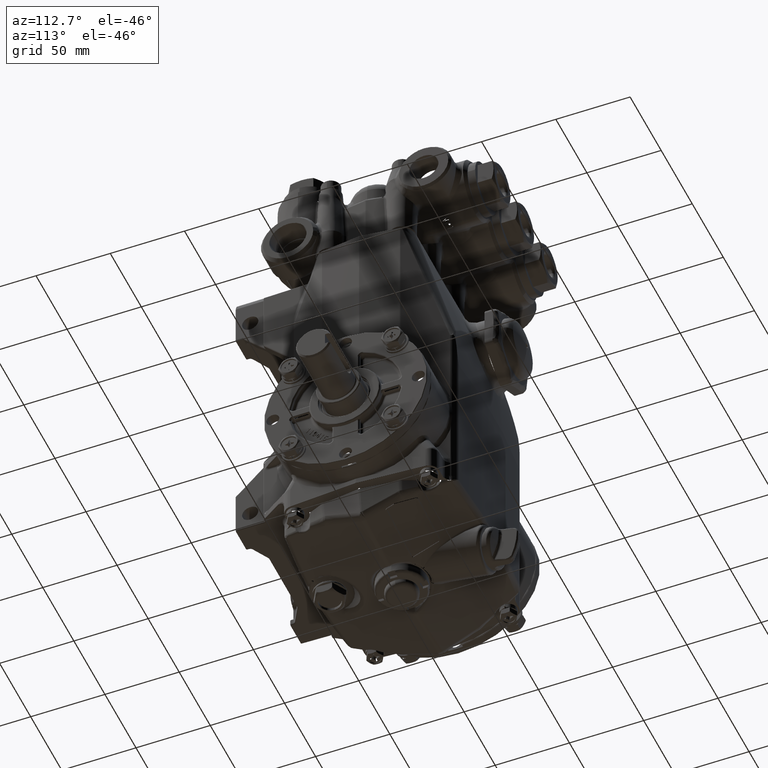
[diagram: clean part render]
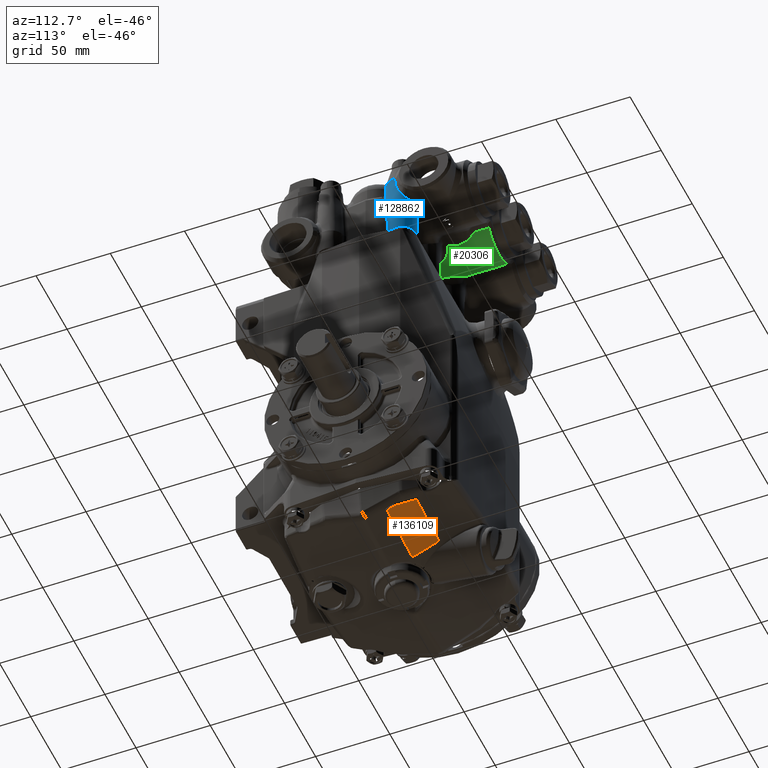
[diagram: same view with three faces highlighted in distinct colors, each labeled with its STEP entity id]
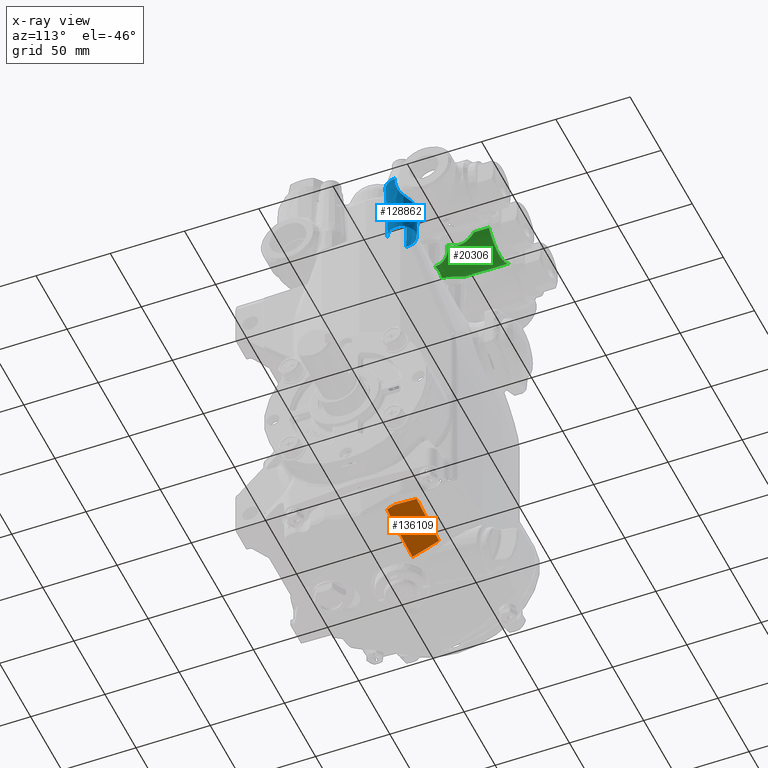
[diagram: x-ray of the same camera — body ghosted, the three highlighted faces saturated]
A machine part, auxiliary view with three faces highlighted in distinct colors.
The next image is the same camera in x-ray (body ghosted, the three faces saturated) — at least one of them is partly hidden behind the body in this view.
Their STEP definitions:

[orange] entity #136109 — the highlighted conical surface has half-angle 22.122 deg.
#51 = CARTESIAN_POINT ( 'NONE',  ( 0.7677165354330708347, 1.299212598425196985, -2.842302195413143995 ) ) ;
#169 = B_SPLINE_CURVE_WITH_KNOTS ( 'NONE', 3,
 ( #26212, #68904, #111636, #102531 ),
 .UNSPECIFIED., .F., .F.,
 ( 4, 4 ),
 ( 2.218473690718443582E-07, 0.0001861085757938792248 ),
 .UNSPECIFIED. ) ;
#358 = EDGE_CURVE ( 'NONE', #76407, #116620, #55934, .T. ) ;
#1653 = ORIENTED_EDGE ( 'NONE', *, *, #60743, .T. ) ;
#2591 = EDGE_CURVE ( 'NONE', #136802, #64716, #26586, .T. ) ;
#2777 = CIRCLE ( 'NONE', #85632, 19.15690416746686608 ) ;
#6854 = B_SPLINE_CURVE_WITH_KNOTS ( 'NONE', 3,
 ( #52962, #90671, #133446, #57054, #122923, #120179, #101193 ),
 .UNSPECIFIED., .F., .F.,
 ( 4, 3, 4 ),
 ( 0.06035633429152259533, 0.06307777925317023526, 0.07870920350615823180 ),
 .UNSPECIFIED. ) ;
#6907 = EDGE_CURVE ( 'NONE', #12508, #76407, #6854, .T. ) ;
#7312 = CARTESIAN_POINT ( 'NONE',  ( 0.000000000000000000, 1.299212598425196985, 16.29921259842519632 ) ) ;
#8488 = CARTESIAN_POINT ( 'NONE',  ( 0.7570998398018038422, 0.5928814125777750466, -3.130073046494867395 ) ) ;
#11309 = EDGE_LOOP ( 'NONE', ( #50587, #68968, #77311, #32948, #49224, #1653, #89679, #68661, #100817, #76723 ) ) ;
#11331 = VERTEX_POINT ( 'NONE', #18843 ) ;
#11808 = VERTEX_POINT ( 'NONE', #50214 ) ;
#12508 = VERTEX_POINT ( 'NONE', #119878 ) ;
#13109 = CARTESIAN_POINT ( 'NONE',  ( 2.362204724409448620, 0.6371871770540744606, -2.982650671379236229 ) ) ;
#13558 = EDGE_CURVE ( 'NONE', #11331, #136802, #52075, .T. ) ;
#17110 = CARTESIAN_POINT ( 'NONE',  ( 2.167463078953089095, 1.299212598425196985, -2.734680803162426344 ) ) ;
#18843 = CARTESIAN_POINT ( 'NONE',  ( 2.362204724409448620, 0.6102362204722598937, -2.993688159327999809 ) ) ;
#20487 = FACE_OUTER_BOUND ( 'NONE', #11309, .T. ) ;
#22391 = CARTESIAN_POINT ( 'NONE',  ( 2.342519685039369914, 0.5905511811023627100, -3.004148964126789334 ) ) ;
#23170 = B_SPLINE_CURVE_WITH_KNOTS ( 'NONE', 3,
 ( #51408, #17110, #103950, #30401, #40903, #136187 ),
 .UNSPECIFIED., .F., .F.,
 ( 4, 2, 4 ),
 ( 1.984561040281247170E-07, 0.0003094218443854333095, 0.0006186452326668385104 ),
 .UNSPECIFIED. ) ;
#26212 = CARTESIAN_POINT ( 'NONE',  ( 2.361017571275371818, 0.7940603347764877418, -2.918548586191764826 ) ) ;
#26517 = CARTESIAN_POINT ( 'NONE',  ( 2.362204724409448620, 0.7873276547897483102, -2.921160157032187676 ) ) ;
#26586 = CIRCLE ( 'NONE', #51195, 19.44497791434607237 ) ;
#29700 = CARTESIAN_POINT ( 'NONE',  ( 0.7480314960629921295, 1.279527559054941532, -2.851089726829155957 ) ) ;
#30401 = CARTESIAN_POINT ( 'NONE',  ( 2.178118652281386236, 1.293189789271259160, -2.735928493229534908 ) ) ;
#31704 = DIRECTION ( 'NONE',  ( 0.000000000000000000, 0.000000000000000000, -1.000000000000000000 ) ) ;
#32948 = ORIENTED_EDGE ( 'NONE', *, *, #13558, .T. ) ;
#33126 = CARTESIAN_POINT ( 'NONE',  ( 2.181871456814156840, 1.286260239041714382, -2.738333758847125488 ) ) ;
#34153 = CARTESIAN_POINT ( 'NONE',  ( 2.362204724409448620, 0.7231685834625665166, -2.947437113610024806 ) ) ;
#35254 = CARTESIAN_POINT ( 'NONE',  ( 0.7480314960629921295, 1.279527559054941532, -2.851089726829155957 ) ) ;
#35616 = CARTESIAN_POINT ( 'NONE',  ( 2.348001423283686329, 0.5905511811023624880, -3.003483739072394076 ) ) ;
#35912 = CARTESIAN_POINT ( 'NONE',  ( 0.7677165354330672820, 0.5905511811023621549, -3.130604112255045646 ) ) ;
#36244 = DIRECTION ( 'NONE',  ( -1.000000000000000000, -2.177613370831132838E-16, 0.000000000000000000 ) ) ;
#36302 = CARTESIAN_POINT ( 'NONE',  ( 2.360236712056326347, 0.6002426481417431070, -2.998022095007448762 ) ) ;
#38633 = CARTESIAN_POINT ( 'NONE',  ( 0.7677165354330672820, 0.5905511811023621549, -3.130604112255045646 ) ) ;
#40903 = CARTESIAN_POINT ( 'NONE',  ( 2.180542416158743446, 1.289911748232079880, -2.736992008522298292 ) ) ;
#41783 = EDGE_CURVE ( 'NONE', #72065, #11331, #93873, .T. ) ;
#45753 = CARTESIAN_POINT ( 'NONE',  ( 0.7499633990554601670, 1.289469332308141869, -2.846970041902299187 ) ) ;
#46440 = CARTESIAN_POINT ( 'NONE',  ( 0.7480314960629468324, 1.284561786859838906, -2.849041732165378704 ) ) ;
#49224 = ORIENTED_EDGE ( 'NONE', *, *, #2591, .T. ) ;
#50214 = CARTESIAN_POINT ( 'NONE',  ( 2.163373570578166927, 1.299212598425196985, -2.735145601304923790 ) ) ;
#50587 = ORIENTED_EDGE ( 'NONE', *, *, #91049, .T. ) ;
#51195 = AXIS2_PLACEMENT_3D ( 'NONE', #79656, #132238, #36244 ) ;
#51408 = CARTESIAN_POINT ( 'NONE',  ( 2.163373570578166927, 1.299212598425196985, -2.735145601304923790 ) ) ;
#52075 = B_SPLINE_CURVE_WITH_KNOTS ( 'NONE', 3,
 ( #66470, #78332, #36302, #109195, #35616, #22391 ),
 .UNSPECIFIED., .F., .F.,
 ( 4, 2, 4 ),
 ( 2.130397895611796128E-07, 0.0004140804918880232528, 0.0008279479439864853270 ),
 .UNSPECIFIED. ) ;
#52699 = CARTESIAN_POINT ( 'NONE',  ( 0.000000000000000000, 2.421259842519685179, 16.29921259842519632 ) ) ;
#52754 = CARTESIAN_POINT ( 'NONE',  ( 2.241564233204892620, 1.122255683803611515, -2.798597379665573204 ) ) ;
#52962 = CARTESIAN_POINT ( 'NONE',  ( 0.7480314960629922405, 0.6102362204722661110, -3.123363947683041708 ) ) ;
#54894 = CARTESIAN_POINT ( 'NONE',  ( 0.7571049466979473674, 1.296888633076421993, -2.843670637348393981 ) ) ;
#55822 = CARTESIAN_POINT ( 'NONE',  ( 2.362204724409448620, 0.7552481542798099579, -2.934298721152639455 ) ) ;
#55934 = B_SPLINE_CURVE_WITH_KNOTS ( 'NONE', 3,
 ( #35254, #46440, #45753, #54894, #131918, #129201 ),
 .UNSPECIFIED., .F., .F.,
 ( 4, 2, 4 ),
 ( 2.128983218082860915E-07, 0.0004085744633657869651, 0.0008169360284097656284 ),
 .UNSPECIFIED. ) ;
#57054 = CARTESIAN_POINT ( 'NONE',  ( 0.7480314960629922405, 0.7094818394611273060, -3.082990228194323556 ) ) ;
#60550 = DIRECTION ( 'NONE',  ( 0.000000000000000000, 0.000000000000000000, -1.000000000000000000 ) ) ;
#60743 = EDGE_CURVE ( 'NONE', #64716, #12508, #108733, .T. ) ;
#64716 = VERTEX_POINT ( 'NONE', #35912 ) ;
#66470 = CARTESIAN_POINT ( 'NONE',  ( 2.362204724409448620, 0.6102362204722598937, -2.993688159327999809 ) ) ;
#68661 = ORIENTED_EDGE ( 'NONE', *, *, #358, .T. ) ;
#68736 = EDGE_CURVE ( 'NONE', #118977, #72065, #169, .T. ) ;
#68904 = CARTESIAN_POINT ( 'NONE',  ( 2.361818043338570039, 0.7918610558578859093, -2.919350980894141134 ) ) ;
#68968 = ORIENTED_EDGE ( 'NONE', *, *, #68736, .T. ) ;
#72065 = VERTEX_POINT ( 'NONE', #26517 ) ;
#73129 = DIRECTION ( 'NONE',  ( 0.000000000000000000, -1.000000000000000000, 0.000000000000000000 ) ) ;
#74344 = AXIS2_PLACEMENT_3D ( 'NONE', #52699, #129742, #31704 ) ;
#76407 = VERTEX_POINT ( 'NONE', #29700 ) ;
#76477 = EDGE_CURVE ( 'NONE', #11808, #86241, #23170, .T. ) ;
#76723 = ORIENTED_EDGE ( 'NONE', *, *, #76477, .T. ) ;
#76847 = CARTESIAN_POINT ( 'NONE',  ( 2.362204724409448620, 0.6910889427706020660, -2.960575335452757084 ) ) ;
#77311 = ORIENTED_EDGE ( 'NONE', *, *, #41783, .T. ) ;
#78332 = CARTESIAN_POINT ( 'NONE',  ( 2.362204724409401990, 0.6051375368811405808, -2.995776272917617611 ) ) ;
#78812 = CONICAL_SURFACE ( 'NONE', #74344, 18.70078740157480368, 0.3861007243444653514 ) ;
#79656 = CARTESIAN_POINT ( 'NONE',  ( -1.714007097452575998E-15, 0.5905511811023621549, 16.29921259842519632 ) ) ;
#80716 = B_SPLINE_CURVE_WITH_KNOTS ( 'NONE', 3,
 ( #33126, #52754, #119283, #117924 ),
 .UNSPECIFIED., .F., .F.,
 ( 4, 4 ),
 ( 2.251659847165332422E-07, 0.01406988702351640204 ),
 .UNSPECIFIED. ) ;
#81342 = CARTESIAN_POINT ( 'NONE',  ( 0.7623334037972309130, 0.5905511811023631541, -3.130816812108617953 ) ) ;
#85632 = AXIS2_PLACEMENT_3D ( 'NONE', #7312, #73129, #60550 ) ;
#86241 = VERTEX_POINT ( 'NONE', #115751 ) ;
#88049 = CARTESIAN_POINT ( 'NONE',  ( 2.362204724409448620, 0.6102362204722598937, -2.993688159327999809 ) ) ;
#89097 = CARTESIAN_POINT ( 'NONE',  ( 2.361017571275371818, 0.7940603347764877418, -2.918548586191764826 ) ) ;
#89679 = ORIENTED_EDGE ( 'NONE', *, *, #6907, .T. ) ;
#90671 = CARTESIAN_POINT ( 'NONE',  ( 0.7480314960629922405, 0.6433181007146216990, -3.109906058998912481 ) ) ;
#91049 = EDGE_CURVE ( 'NONE', #86241, #118977, #80716, .T. ) ;
#93873 = B_SPLINE_CURVE_WITH_KNOTS ( 'NONE', 3,
 ( #131485, #55822, #34153, #76847, #109088, #13109, #88049 ),
 .UNSPECIFIED., .F., .F.,
 ( 4, 3, 4 ),
 ( 0.04871938871757212908, 0.05136092104862834823, 0.05358013428598052547 ),
 .UNSPECIFIED. ) ;
#100817 = ORIENTED_EDGE ( 'NONE', *, *, #118793, .T. ) ;
#101193 = CARTESIAN_POINT ( 'NONE',  ( 0.7480314960629921295, 1.279527559054941532, -2.851089726829155957 ) ) ;
#102531 = CARTESIAN_POINT ( 'NONE',  ( 2.362204724409448620, 0.7873276547897483102, -2.921160157032187676 ) ) ;
#103075 = CARTESIAN_POINT ( 'NONE',  ( 0.7480314960630365384, 0.6052554894337803804, -3.125390136139997832 ) ) ;
#103950 = CARTESIAN_POINT ( 'NONE',  ( 2.171489969117927465, 1.297917720654659934, -2.734751430057754895 ) ) ;
#105142 = CARTESIAN_POINT ( 'NONE',  ( 0.7480314960629922405, 0.6102362204722661110, -3.123363947683041708 ) ) ;
#108733 = B_SPLINE_CURVE_WITH_KNOTS ( 'NONE', 3,
 ( #38633, #81342, #8488, #115685, #103075, #105142 ),
 .UNSPECIFIED., .F., .F.,
 ( 4, 2, 4 ),
 ( 1.972626934571511815E-07, 0.0004047914403740930341, 0.0008093856180547288458 ),
 .UNSPECIFIED. ) ;
#108872 = CARTESIAN_POINT ( 'NONE',  ( 2.342519685039369914, 0.5905511811023627100, -3.004148964126789334 ) ) ;
#109088 = CARTESIAN_POINT ( 'NONE',  ( 2.362204724409448620, 0.6641380845717120840, -2.971613063626493467 ) ) ;
#109195 = CARTESIAN_POINT ( 'NONE',  ( 2.353114353284962768, 0.5928719600789127409, -3.001910296782097642 ) ) ;
#111636 = CARTESIAN_POINT ( 'NONE',  ( 2.362204724409469492, 0.7896158197265470413, -2.920223010216853154 ) ) ;
#115685 = CARTESIAN_POINT ( 'NONE',  ( 0.7499720450541932371, 0.6002845048222804625, -3.127337857010716426 ) ) ;
#115751 = CARTESIAN_POINT ( 'NONE',  ( 2.181871456814156840, 1.286260239041714382, -2.738333758847125488 ) ) ;
#116620 = VERTEX_POINT ( 'NONE', #51 ) ;
#117924 = CARTESIAN_POINT ( 'NONE',  ( 2.361017571275371818, 0.7940603347764877418, -2.918548586191764826 ) ) ;
#118793 = EDGE_CURVE ( 'NONE', #116620, #11808, #2777, .T. ) ;
#118977 = VERTEX_POINT ( 'NONE', #89097 ) ;
#119283 = CARTESIAN_POINT ( 'NONE',  ( 2.301279799705799434, 0.9581885132524283755, -2.858667331565183822 ) ) ;
#119878 = CARTESIAN_POINT ( 'NONE',  ( 0.7480314960629922405, 0.6102362204722661110, -3.123363947683041708 ) ) ;
#120179 = CARTESIAN_POINT ( 'NONE',  ( 0.7480314960629922405, 1.089512565094623353, -2.928390498417218435 ) ) ;
#122923 = CARTESIAN_POINT ( 'NONE',  ( 0.7480314960629922405, 0.8994973222866062823, -3.005690658309041474 ) ) ;
#129201 = CARTESIAN_POINT ( 'NONE',  ( 0.7677165354330708347, 1.299212598425196985, -2.842302195413143995 ) ) ;
#129742 = DIRECTION ( 'NONE',  ( 0.000000000000000000, -1.000000000000000000, 0.000000000000000000 ) ) ;
#131485 = CARTESIAN_POINT ( 'NONE',  ( 2.362204724409448620, 0.7873276547897483102, -2.921160157032187676 ) ) ;
#131918 = CARTESIAN_POINT ( 'NONE',  ( 0.7622728643543603688, 1.299212598425196985, -2.842520526947804438 ) ) ;
#132238 = DIRECTION ( 'NONE',  ( -2.168404344971009608E-16, 1.000000000000000000, 0.000000000000000000 ) ) ;
#133446 = CARTESIAN_POINT ( 'NONE',  ( 0.7480314960629922405, 0.6763999737260083522, -3.096448152539762244 ) ) ;
#136109 = ADVANCED_FACE ( 'NONE', ( #20487 ), #78812, .T. ) ;
#136187 = CARTESIAN_POINT ( 'NONE',  ( 2.181871456814156840, 1.286260239041714382, -2.738333758847125488 ) ) ;
#136802 = VERTEX_POINT ( 'NONE', #108872 ) ;

[blue] entity #128862 — the highlighted conical surface has half-angle 2 deg.
#384 = VERTEX_POINT ( 'NONE', #24069 ) ;
#409 = CARTESIAN_POINT ( 'NONE',  ( 1.861803409688485011, 0.9407094575471620646, 7.336223821275323687 ) ) ;
#3229 = B_SPLINE_CURVE_WITH_KNOTS ( 'NONE', 3,
 ( #90899, #90195, #27175, #111207 ),
 .UNSPECIFIED., .F., .F.,
 ( 4, 4 ),
 ( 0.000000000000000000, 0.01762479685504074120 ),
 .UNSPECIFIED. ) ;
#4053 = AXIS2_PLACEMENT_3D ( 'NONE', #133039, #104798, #68550 ) ;
#4342 = CARTESIAN_POINT ( 'NONE',  ( 2.534647657248350949, 1.204540927760685554, 7.538040808081320598 ) ) ;
#4360 = CARTESIAN_POINT ( 'NONE',  ( 2.649008875044799982, 0.9442391490563317724, 7.982163679493296193 ) ) ;
#5048 = CARTESIAN_POINT ( 'NONE',  ( 2.336161191729448916, 1.320519103213885881, 7.460911059873077456 ) ) ;
#5750 = CARTESIAN_POINT ( 'NONE',  ( 2.218000379204186689, 1.332211635285447837, 7.455147650343310062 ) ) ;
#11229 = CIRCLE ( 'NONE', #44728, 0.3556575611107096191 ) ;
#11622 = CARTESIAN_POINT ( 'NONE',  ( 1.866230547579284638, 0.9029842566450290153, 7.275649669491573768 ) ) ;
#12494 = DIRECTION ( 'NONE',  ( 0.000000000000000000, -1.128368283479083073E-16, 1.000000000000000000 ) ) ;
#14159 = CARTESIAN_POINT ( 'NONE',  ( 2.639066968661640367, 1.001629162794327677, 7.815402074447262315 ) ) ;
#14853 = CARTESIAN_POINT ( 'NONE',  ( 2.309288296444247823, 1.326008624877284880, 7.458182443232479031 ) ) ;
#14871 = CARTESIAN_POINT ( 'NONE',  ( 2.644453250993850091, 0.9745738423280910778, 7.880846973744087158 ) ) ;
#15548 = CARTESIAN_POINT ( 'NONE',  ( 2.610202473574045001, 1.091410278387100696, 7.659093474000644441 ) ) ;
#15669 = VERTEX_POINT ( 'NONE', #83883 ) ;
#15847 = CARTESIAN_POINT ( 'NONE',  ( 2.026008566358926455, 1.263284333314909080, 7.431320302112107257 ) ) ;
#16554 = CARTESIAN_POINT ( 'NONE',  ( 1.863656350348960711, 0.9993433660858559442, 7.341738156746068888 ) ) ;
#17963 = CARTESIAN_POINT ( 'NONE',  ( 1.870582511628840372, 1.035513753148030291, 7.344192755015568785 ) ) ;
#18310 = CARTESIAN_POINT ( 'NONE',  ( 2.305426451589334125, 0.5945524861438769015, 6.573429153673131964 ) ) ;
#18561 = VERTEX_POINT ( 'NONE', #18310 ) ;
#20522 = CARTESIAN_POINT ( 'NONE',  ( 2.305608730188834610, 0.5931735530180033411, 6.613225197322275761 ) ) ;
#20763 = CARTESIAN_POINT ( 'NONE',  ( 1.862854832095889979, 0.9232577342142475052, 7.323174742913058921 ) ) ;
#23130 = B_SPLINE_CURVE_WITH_KNOTS ( 'NONE', 3,
 ( #136142, #20522, #40159, #116520, #40860, #125641, #52051, #29656, #72368, #82872, #28291, #115130, #82185 ),
 .UNSPECIFIED., .F., .F.,
 ( 4, 3, 3, 3, 4 ),
 ( 0.0009656898102938655777, 0.004000000000033364887, 0.02000000000358590282, 0.04302625218245829941, 0.04318078307463346643 ),
 .UNSPECIFIED. ) ;
#24069 = CARTESIAN_POINT ( 'NONE',  ( 1.888436927078268601, 0.9448818897637792924, 6.573429153673131076 ) ) ;
#24473 = EDGE_CURVE ( 'NONE', #63118, #67115, #36947, .T. ) ;
#25388 = CARTESIAN_POINT ( 'NONE',  ( 2.472935514523421752, 1.258554010908518928, 7.497155846801384804 ) ) ;
#25405 = CARTESIAN_POINT ( 'NONE',  ( 2.654145857028515021, 0.9172049402774354876, 8.157341495081020355 ) ) ;
#26792 = CARTESIAN_POINT ( 'NONE',  ( 2.327285032091596317, 1.322550234904485755, 7.459894493029770146 ) ) ;
#26909 = VERTEX_POINT ( 'NONE', #129209 ) ;
#27175 = CARTESIAN_POINT ( 'NONE',  ( 1.883179581476829290, 0.8996346210129034793, 6.804566210043434538 ) ) ;
#27792 = CARTESIAN_POINT ( 'NONE',  ( 2.051984792393543700, 1.280430133310112906, 7.451989122169594637 ) ) ;
#28190 = CARTESIAN_POINT ( 'NONE',  ( 2.077876592537356792, 1.294521091702536042, 7.474915758125018961 ) ) ;
#28291 = CARTESIAN_POINT ( 'NONE',  ( 2.312952740863898793, 0.5371359266601197779, 8.230373183999324382 ) ) ;
#29268 = AXIS2_PLACEMENT_3D ( 'NONE', #85599, #52695, #137478 ) ;
#29656 = CARTESIAN_POINT ( 'NONE',  ( 2.310215462188078828, 0.5581366483711339699, 7.624351587699218058 ) ) ;
#33435 = ORIENTED_EDGE ( 'NONE', *, *, #74482, .F. ) ;
#34290 = CARTESIAN_POINT ( 'NONE',  ( 2.244094488188976388, 0.9448818897637796255, 6.573429153673131076 ) ) ;
#35899 = CARTESIAN_POINT ( 'NONE',  ( 2.517579797152795340, 1.221443338997366235, 7.524379592182013354 ) ) ;
#36889 = CARTESIAN_POINT ( 'NONE',  ( 2.013115272328601879, 1.253685165485132424, 7.421817606034693426 ) ) ;
#36947 = B_SPLINE_CURVE_WITH_KNOTS ( 'NONE', 3,
 ( #48797, #134281, #27792, #15847, #36889, #113945, #49493, #81700, #100627, #123757, #79601, #91508, #133581, #48099, #92202, #17963, #16554, #122377 ),
 .UNSPECIFIED., .F., .F.,
 ( 4, 2, 2, 2, 2, 2, 2, 2, 4 ),
 ( 0.000000000000000000, 0.001421296052617897513, 0.002842592105235795027, 0.004263888157853704466, 0.005685184210471613472, 0.007106480263089522478, 0.007817128289398473512, 0.008527776315707424545, 0.01137036842094322521 ),
 .UNSPECIFIED. ) ;
#37292 = CARTESIAN_POINT ( 'NONE',  ( 2.544877231787860516, 1.193084266682740591, 7.547941697212940504 ) ) ;
#37704 = ORIENTED_EDGE ( 'NONE', *, *, #42414, .F. ) ;
#38701 = CARTESIAN_POINT ( 'NONE',  ( 2.655244233785588825, 0.9153805615966481568, 8.192787087514732391 ) ) ;
#40159 = CARTESIAN_POINT ( 'NONE',  ( 2.305790885210711849, 0.5917946127707168769, 6.653021241290870691 ) ) ;
#40860 = CARTESIAN_POINT ( 'NONE',  ( 2.306932795237793155, 0.5831444402953692707, 6.902662907394263136 ) ) ;
#42414 = EDGE_CURVE ( 'NONE', #133295, #63118, #107002, .T. ) ;
#43227 = ORIENTED_EDGE ( 'NONE', *, *, #123433, .F. ) ;
#43860 = CARTESIAN_POINT ( 'NONE',  ( 1.864067480272381117, 0.9127463600762834028, 7.309125965395670832 ) ) ;
#44671 = ORIENTED_EDGE ( 'NONE', *, *, #51596, .F. ) ;
#44728 = AXIS2_PLACEMENT_3D ( 'NONE', #34290, #88192, #131627 ) ;
#46402 = CARTESIAN_POINT ( 'NONE',  ( 2.563379027129064625, 1.170081946970243925, 7.569342201623926236 ) ) ;
#46922 = CARTESIAN_POINT ( 'NONE',  ( 1.866546591729894455, 0.9029229933981913758, 7.266848504365934325 ) ) ;
#47110 = CARTESIAN_POINT ( 'NONE',  ( 2.647813203872985799, 0.9531541184479653817, 7.948028086628778688 ) ) ;
#47785 = CARTESIAN_POINT ( 'NONE',  ( 2.300133379202217832, 1.327438007304584389, 7.457485952374944382 ) ) ;
#47795 = AXIS2_PLACEMENT_3D ( 'NONE', #88322, #118542, #65950 ) ;
#48099 = CARTESIAN_POINT ( 'NONE',  ( 1.888842624237887957, 1.087860126153815221, 7.351681671493007109 ) ) ;
#48398 = CONICAL_SURFACE ( 'NONE', #95414, 0.4134485467773693634, 0.03490658503988738198 ) ;
#48797 = CARTESIAN_POINT ( 'NONE',  ( 2.077876592537356792, 1.294521091702536042, 7.474915758125018961 ) ) ;
#49493 = CARTESIAN_POINT ( 'NONE',  ( 1.976057886092387417, 1.220974283844106667, 7.396939499272170870 ) ) ;
#51596 = EDGE_CURVE ( 'NONE', #384, #95505, #11229, .T. ) ;
#52051 = CARTESIAN_POINT ( 'NONE',  ( 2.308843003612528921, 0.5686014579004056158, 7.322354176192448882 ) ) ;
#52059 = CARTESIAN_POINT ( 'NONE',  ( 2.655036530563264829, 0.8975326094750906147, 8.234426638614014138 ) ) ;
#52294 = CARTESIAN_POINT ( 'NONE',  ( 1.861719234766352038, 0.9530776950432765515, 7.340381646815708372 ) ) ;
#52695 = DIRECTION ( 'NONE',  ( -0.000000000000000000, -5.641841417395415363E-17, 1.000000000000000000 ) ) ;
#53255 = EDGE_CURVE ( 'NONE', #98977, #26909, #73721, .T. ) ;
#53809 = CARTESIAN_POINT ( 'NONE',  ( 2.077876592537356792, 1.294521091702536042, 7.474915758125018961 ) ) ;
#53901 = CARTESIAN_POINT ( 'NONE',  ( 2.639066968661640367, 1.001629162794327677, 7.815402074447262315 ) ) ;
#56897 = CARTESIAN_POINT ( 'NONE',  ( 2.635769640383939016, 1.016473987165907200, 7.782393724949594471 ) ) ;
#58284 = CARTESIAN_POINT ( 'NONE',  ( 2.458805258727502441, 1.268163904146925480, 7.490859920347265444 ) ) ;
#58975 = CARTESIAN_POINT ( 'NONE',  ( 2.586506379068579609, 1.135583108362629767, 7.605449876322400549 ) ) ;
#58993 = CARTESIAN_POINT ( 'NONE',  ( 2.651152492064718924, 0.9298827658441888300, 8.051455679130352650 ) ) ;
#63118 = VERTEX_POINT ( 'NONE', #53809 ) ;
#63482 = CARTESIAN_POINT ( 'NONE',  ( 1.864700337997121427, 0.9090820617889705524, 7.301182108640968060 ) ) ;
#64192 = CARTESIAN_POINT ( 'NONE',  ( 1.861813023249320409, 0.9575007568583179252, 7.341064909404920513 ) ) ;
#65053 = DIRECTION ( 'NONE',  ( 0.000000000000000000, -1.000000000000000000, 0.000000000000000000 ) ) ;
#65950 = DIRECTION ( 'NONE',  ( 1.000000000000000000, 0.000000000000000000, 0.000000000000000000 ) ) ;
#67115 = VERTEX_POINT ( 'NONE', #85514 ) ;
#67427 = CARTESIAN_POINT ( 'NONE',  ( 2.639066968661640367, 1.001629162794327677, 7.815402074447262315 ) ) ;
#68550 = DIRECTION ( 'NONE',  ( 1.000000000000000000, 0.000000000000000000, 0.000000000000000000 ) ) ;
#69493 = CARTESIAN_POINT ( 'NONE',  ( 2.254504772025544224, 1.332924009501758045, 7.454829143413945758 ) ) ;
#72368 = CARTESIAN_POINT ( 'NONE',  ( 2.311581970078045334, 0.5476715226437464112, 7.926349015331404679 ) ) ;
#73721 = B_SPLINE_CURVE_WITH_KNOTS ( 'NONE', 3,
 ( #52059, #127722, #94776, #96162, #137528, #138233 ),
 .UNSPECIFIED., .F., .F.,
 ( 4, 2, 4 ),
 ( -0.0004687444731202445301, -0.0002221801797227523499, 2.438411367473983021E-05 ),
 .UNSPECIFIED. ) ;
#74482 = EDGE_CURVE ( 'NONE', #15669, #384, #138442, .T. ) ;
#74871 = FACE_OUTER_BOUND ( 'NONE', #132922, .T. ) ;
#75327 = CARTESIAN_POINT ( 'NONE',  ( 2.599752049299684842, 0.9448818897637792924, 6.573429153673131076 ) ) ;
#79321 = CARTESIAN_POINT ( 'NONE',  ( 2.642302881031982853, 0.9870608375400825585, 7.847795611719987185 ) ) ;
#79601 = CARTESIAN_POINT ( 'NONE',  ( 1.912156179959592972, 1.137194152324017216, 7.362054623401424358 ) ) ;
#80697 = CARTESIAN_POINT ( 'NONE',  ( 2.593052410635973803, 1.124226105196171277, 7.618517887124804489 ) ) ;
#81391 = CARTESIAN_POINT ( 'NONE',  ( 2.379462896697514207, 1.307749333371303946, 7.467508591682010533 ) ) ;
#81700 = CARTESIAN_POINT ( 'NONE',  ( 1.952832364386910324, 1.195612527988654694, 7.383106672771591938 ) ) ;
#82185 = CARTESIAN_POINT ( 'NONE',  ( 2.312971016240062294, 0.5369954589791351429, 8.234426638614012361 ) ) ;
#82872 = CARTESIAN_POINT ( 'NONE',  ( 2.312943602845054070, 0.5372061604844992067, 8.228346456692914757 ) ) ;
#83883 = CARTESIAN_POINT ( 'NONE',  ( 1.891555615055753536, 0.8978858338182896803, 6.573428572717614493 ) ) ;
#84507 = CARTESIAN_POINT ( 'NONE',  ( 1.865787756546772425, 0.9041672348605876985, 7.284340661250883642 ) ) ;
#85514 = CARTESIAN_POINT ( 'NONE',  ( 1.862008111162504420, 0.9619291555500151247, 7.341136162314337632 ) ) ;
#85599 = CARTESIAN_POINT ( 'NONE',  ( 2.244094488188976388, 0.9448818897637792924, 8.234426638614012361 ) ) ;
#85886 = CARTESIAN_POINT ( 'NONE',  ( 1.862117103649604033, 0.9331095139110696657, 7.331782228788998879 ) ) ;
#88192 = DIRECTION ( 'NONE',  ( 0.000000000000000000, 0.000000000000000000, -1.000000000000000000 ) ) ;
#88322 = CARTESIAN_POINT ( 'NONE',  ( 2.244094488188976388, 0.9448818897637796255, 6.573429153673131076 ) ) ;
#89596 = CIRCLE ( 'NONE', #29268, 0.4136608714087039451 ) ;
#90195 = CARTESIAN_POINT ( 'NONE',  ( 1.874846750533550210, 0.9013140578219637211, 7.035706532401436064 ) ) ;
#90899 = CARTESIAN_POINT ( 'NONE',  ( 1.866546591729894455, 0.9029229933981913758, 7.266848504365934325 ) ) ;
#91206 = CARTESIAN_POINT ( 'NONE',  ( 2.412557938666268775, 1.293916715104912685, 7.475198513370012066 ) ) ;
#91508 = CARTESIAN_POINT ( 'NONE',  ( 1.899851266153422813, 1.113014229697389723, 7.356455179847422698 ) ) ;
#92202 = CARTESIAN_POINT ( 'NONE',  ( 1.885521176456942616, 1.079179163687757237, 7.350295891492295119 ) ) ;
#93292 = CARTESIAN_POINT ( 'NONE',  ( 2.312971016240062294, 0.5369954589791351429, 8.234426638614012361 ) ) ;
#93481 = EDGE_CURVE ( 'NONE', #18561, #111985, #23130, .T. ) ;
#93994 = ORIENTED_EDGE ( 'NONE', *, *, #112884, .F. ) ;
#94776 = CARTESIAN_POINT ( 'NONE',  ( 2.655511050155763275, 0.9029247820448312867, 8.230951524199481284 ) ) ;
#95414 = AXIS2_PLACEMENT_3D ( 'NONE', #117643, #12494, #65053 ) ;
#95505 = VERTEX_POINT ( 'NONE', #75327 ) ;
#96162 = CARTESIAN_POINT ( 'NONE',  ( 2.656002892821273775, 0.9089229694577393159, 8.228790532010499703 ) ) ;
#97888 = EDGE_CURVE ( 'NONE', #67115, #108203, #131616, .T. ) ;
#98977 = VERTEX_POINT ( 'NONE', #121378 ) ;
#100627 = CARTESIAN_POINT ( 'NONE',  ( 1.941660267487064662, 1.181711468923723807, 7.376961513693148120 ) ) ;
#101023 = CARTESIAN_POINT ( 'NONE',  ( 2.428691995616374388, 1.285820233990988548, 7.479893941269834201 ) ) ;
#101724 = CARTESIAN_POINT ( 'NONE',  ( 2.511586988534215248, 1.227040360667902341, 7.520017642195025331 ) ) ;
#104798 = DIRECTION ( 'NONE',  ( 0.000000000000000000, 0.000000000000000000, -1.000000000000000000 ) ) ;
#106901 = CARTESIAN_POINT ( 'NONE',  ( 1.866546591729894455, 0.9029229933981913758, 7.266848504365934325 ) ) ;
#107002 = B_SPLINE_CURVE_WITH_KNOTS ( 'NONE', 3,
 ( #14159, #56897, #131882, #133283, #15548, #80697, #58975, #123458, #46402, #37292, #4342, #35899, #101724, #121373, #122763, #25388, #58284, #101023, #91206, #81391, #110818, #5048, #26792, #14853, #47785, #69493, #5750, #133983, #124161, #28190 ),
 .UNSPECIFIED., .F., .F.,
 ( 4, 2, 2, 2, 2, 2, 2, 2, 2, 2, 2, 2, 2, 2, 4 ),
 ( 0.01078552524828387330, 0.01356050557378577284, 0.01633548589928767239, 0.01772297606203864645, 0.01911046622478962398, 0.02049795638754060151, 0.02119170146891609374, 0.02188544655029159292, 0.02327293671304257044, 0.02466042687579354797, 0.02604791703854452203, 0.02674166211992001427, 0.02743540720129550303, 0.03021038752679747197, 0.03298536785229944091 ),
 .UNSPECIFIED. ) ;
#107579 = CARTESIAN_POINT ( 'NONE',  ( 1.863146608013426908, 0.9204102419894402143, 7.319886757602402483 ) ) ;
#108203 = VERTEX_POINT ( 'NONE', #46922 ) ;
#109256 = ORIENTED_EDGE ( 'NONE', *, *, #135636, .F. ) ;
#110153 = CARTESIAN_POINT ( 'NONE',  ( 2.656489487345783385, 0.9153756024403392200, 8.228365693797808689 ) ) ;
#110454 = CIRCLE ( 'NONE', #47795, 0.3556575611107096191 ) ;
#110818 = CARTESIAN_POINT ( 'NONE',  ( 2.362429366662599950, 1.313553394960827125, 7.464467493209214766 ) ) ;
#111207 = CARTESIAN_POINT ( 'NONE',  ( 1.891555615055753536, 0.8978858338182896803, 6.573428572717614493 ) ) ;
#111985 = VERTEX_POINT ( 'NONE', #93292 ) ;
#112884 = EDGE_CURVE ( 'NONE', #26909, #133295, #127688, .T. ) ;
#113945 = CARTESIAN_POINT ( 'NONE',  ( 1.988170942553718401, 1.232549151371867602, 7.404652010812728058 ) ) ;
#114083 = ORIENTED_EDGE ( 'NONE', *, *, #132983, .F. ) ;
#115130 = CARTESIAN_POINT ( 'NONE',  ( 2.312961878662139981, 0.5370656928249917250, 8.232399911306357509 ) ) ;
#116068 = CARTESIAN_POINT ( 'NONE',  ( 1.862008111162504420, 0.9619291555500151247, 7.341136162314337632 ) ) ;
#116520 = CARTESIAN_POINT ( 'NONE',  ( 2.305972920135858306, 0.5904156656893263522, 6.692817285571814878 ) ) ;
#117643 = CARTESIAN_POINT ( 'NONE',  ( 2.244094488188976388, 0.9448818897637792924, 8.228346456692914757 ) ) ;
#118542 = DIRECTION ( 'NONE',  ( 0.000000000000000000, 0.000000000000000000, -1.000000000000000000 ) ) ;
#121373 = CARTESIAN_POINT ( 'NONE',  ( 2.499213649778766921, 1.237896806105314385, 7.511833184456907730 ) ) ;
#121378 = CARTESIAN_POINT ( 'NONE',  ( 2.655036530563264829, 0.8975326094750906147, 8.234426638614014138 ) ) ;
#122377 = CARTESIAN_POINT ( 'NONE',  ( 1.862008111162504420, 0.9619291555500151247, 7.341136162314337632 ) ) ;
#122763 = CARTESIAN_POINT ( 'NONE',  ( 2.492809647967019426, 1.243181166100305823, 7.507989754975062269 ) ) ;
#123433 = EDGE_CURVE ( 'NONE', #95505, #18561, #110454, .T. ) ;
#123458 = CARTESIAN_POINT ( 'NONE',  ( 2.571649982619423014, 1.158535352099323568, 7.580841914088793487 ) ) ;
#123480 = CARTESIAN_POINT ( 'NONE',  ( 2.652101041253749347, 0.9244425820413902928, 8.086717202996293707 ) ) ;
#123638 = ORIENTED_EDGE ( 'NONE', *, *, #53255, .F. ) ;
#123757 = CARTESIAN_POINT ( 'NONE',  ( 1.921371424468686140, 1.152543726090148990, 7.366467721272472957 ) ) ;
#124161 = CARTESIAN_POINT ( 'NONE',  ( 2.110531683139104331, 1.309708870421858018, 7.466215691843692603 ) ) ;
#125641 = CARTESIAN_POINT ( 'NONE',  ( 2.307889338333239060, 0.5758730256403969960, 7.112508537919625340 ) ) ;
#126571 = CARTESIAN_POINT ( 'NONE',  ( 1.861716178614346795, 0.9446985241282167545, 7.337955324320263983 ) ) ;
#127688 = B_SPLINE_CURVE_WITH_KNOTS ( 'NONE', 3,
 ( #110153, #38701, #25405, #123480, #58993, #4360, #47110, #14871, #79321, #67427 ),
 .UNSPECIFIED., .F., .F.,
 ( 4, 2, 2, 2, 4 ),
 ( -4.875315972245409648E-07, 0.002704549721142683865, 0.005409586973882592707, 0.008114624226622499381, 0.01081966147936240866 ),
 .UNSPECIFIED. ) ;
#127722 = CARTESIAN_POINT ( 'NONE',  ( 2.655266954068232987, 0.9001038702561664495, 8.232553604692817828 ) ) ;
#128862 = ADVANCED_FACE ( 'NONE', ( #74871 ), #48398, .T. ) ;
#129209 = CARTESIAN_POINT ( 'NONE',  ( 2.656489487345783385, 0.9153756024403392200, 8.228365693797808689 ) ) ;
#129341 = CARTESIAN_POINT ( 'NONE',  ( 1.862341204549668561, 0.9295849324130752711, 7.329108544633512246 ) ) ;
#130116 = ORIENTED_EDGE ( 'NONE', *, *, #24473, .F. ) ;
#130255 = ORIENTED_EDGE ( 'NONE', *, *, #97888, .F. ) ;
#131120 = ORIENTED_EDGE ( 'NONE', *, *, #93481, .F. ) ;
#131616 = B_SPLINE_CURVE_WITH_KNOTS ( 'NONE', 3,
 ( #116068, #64192, #52294, #126571, #409, #85886, #129341, #20763, #107579, #43860, #63482, #84507, #11622, #106901 ),
 .UNSPECIFIED., .F., .F.,
 ( 4, 2, 2, 2, 2, 2, 4 ),
 ( 0.000000000000000000, 0.0003367806806370080832, 0.0006735613612740161665, 0.001010342041911024358, 0.001347122722548032333, 0.002020684083822122442, 0.002694245445096212551 ),
 .UNSPECIFIED. ) ;
#131627 = DIRECTION ( 'NONE',  ( 1.000000000000000000, 7.681118841204360921E-16, 0.000000000000000000 ) ) ;
#131882 = CARTESIAN_POINT ( 'NONE',  ( 2.631397189698648997, 1.033234387244202468, 7.750302432584852852 ) ) ;
#132922 = EDGE_LOOP ( 'NONE', ( #109256, #130255, #130116, #37704, #93994, #123638, #114083, #131120, #43227, #44671, #33435 ) ) ;
#132983 = EDGE_CURVE ( 'NONE', #111985, #98977, #89596, .T. ) ;
#133039 = CARTESIAN_POINT ( 'NONE',  ( 2.244094488188976388, 0.9448818897637796255, 6.573429153673131076 ) ) ;
#133283 = CARTESIAN_POINT ( 'NONE',  ( 2.618542304188308023, 1.070915731401922200, 7.688283577116055589 ) ) ;
#133295 = VERTEX_POINT ( 'NONE', #53901 ) ;
#133581 = CARTESIAN_POINT ( 'NONE',  ( 1.896003127381424180, 1.104761140558681687, 7.354759558603476854 ) ) ;
#133983 = CARTESIAN_POINT ( 'NONE',  ( 2.145095354611693317, 1.320461169479769215, 7.460903428934610560 ) ) ;
#134281 = CARTESIAN_POINT ( 'NONE',  ( 2.064976974083429173, 1.287930841715020813, 7.463076096473170828 ) ) ;
#135636 = EDGE_CURVE ( 'NONE', #108203, #15669, #3229, .T. ) ;
#136142 = CARTESIAN_POINT ( 'NONE',  ( 2.305426451589334125, 0.5945524861438769015, 6.573429153673131964 ) ) ;
#137478 = DIRECTION ( 'NONE',  ( 0.000000000000000000, 1.000000000000000000, 0.000000000000000000 ) ) ;
#137528 = CARTESIAN_POINT ( 'NONE',  ( 2.656254189146470601, 0.9121503696301617170, 8.228236094180163107 ) ) ;
#138233 = CARTESIAN_POINT ( 'NONE',  ( 2.656489487345783385, 0.9153756024403392200, 8.228365693797808689 ) ) ;
#138442 = CIRCLE ( 'NONE', #4053, 0.3556575611107096191 ) ;

[green] entity #20306 — the highlighted cylindrical surface (edge-blend (fillet) strip) has radius 20.5 mm, axis along (-0, 1, -0).
#2027 =( BOUNDED_CURVE ( )  B_SPLINE_CURVE ( 3, ( #58069, #25173, #67883, #14640 ),
 .UNSPECIFIED., .F., .F. ) 
 B_SPLINE_CURVE_WITH_KNOTS ( ( 4, 4 ),
 ( 6.011788729445193269, 6.554581884913979195 ),
 .UNSPECIFIED. ) 
 CURVE ( )  GEOMETRIC_REPRESENTATION_ITEM ( )  RATIONAL_B_SPLINE_CURVE ( ( 1.000000000000000000, 0.9755982969453755871, 0.9755982969453755871, 1.000000000000000000 ) ) 
 REPRESENTATION_ITEM ( '' )  );
#2155 = CARTESIAN_POINT ( 'NONE',  ( -0.2397172362302964488, 1.109329517686400424, 7.457671346542964486 ) ) ;
#2833 = CARTESIAN_POINT ( 'NONE',  ( -0.3667281423362824810, 1.327426844495994240, 7.509031577606883445 ) ) ;
#4174 = ORIENTED_EDGE ( 'NONE', *, *, #92511, .T. ) ;
#4184 = CARTESIAN_POINT ( 'NONE',  ( 0.5645473715204619714, 1.475870127018533706, 7.651344500535913085 ) ) ;
#4893 = CARTESIAN_POINT ( 'NONE',  ( 0.5221661866032812904, 1.801489824708037979, 7.612932690821399895 ) ) ;
#6262 = CARTESIAN_POINT ( 'NONE',  ( -0.5757638661233344113, 1.446205112537716220, 7.662762887939085665 ) ) ;
#6330 = CARTESIAN_POINT ( 'NONE',  ( -0.4917932853355366785, 1.416847634554420310, 7.587801030246628997 ) ) ;
#8851 = VERTEX_POINT ( 'NONE', #118366 ) ;
#9224 = VERTEX_POINT ( 'NONE', #63903 ) ;
#10771 = CARTESIAN_POINT ( 'NONE',  ( -0.6525381135868656424, 2.578740157480315265, 7.753390866038269991 ) ) ;
#14640 = CARTESIAN_POINT ( 'NONE',  ( -0.2163614850657372413, 0.9671903487464810212, 7.450801274367311322 ) ) ;
#15394 = CARTESIAN_POINT ( 'NONE',  ( 0.5557681280605311080, 1.962507700159356050, 7.642982330997762475 ) ) ;
#15427 = CARTESIAN_POINT ( 'NONE',  ( -0.5757638661233344113, 1.446205112537716220, 7.662762887939085665 ) ) ;
#15481 = CYLINDRICAL_SURFACE ( 'NONE', #126100, 0.8070866141732291332 ) ;
#15728 = CARTESIAN_POINT ( 'NONE',  ( 0.2174842681829313173, 0.9963190136320837498, 7.451113702542759398 ) ) ;
#16120 = CARTESIAN_POINT ( 'NONE',  ( -0.4703063664413542067, 1.405875766848499353, 7.571950945907459207 ) ) ;
#16433 = CARTESIAN_POINT ( 'NONE',  ( 0.5757638661233344113, 1.446205112537716220, 7.662762887939085665 ) ) ;
#16590 = ORIENTED_EDGE ( 'NONE', *, *, #27238, .T. ) ;
#17458 = CARTESIAN_POINT ( 'NONE',  ( -0.5189229801078766302, 1.751092899551942361, 7.610197811214074015 ) ) ;
#17512 = CARTESIAN_POINT ( 'NONE',  ( 0.5313188573074215659, 1.867292837245145609, 7.620785780491821981 ) ) ;
#17835 = CARTESIAN_POINT ( 'NONE',  ( 0.2289027922706657336, 1.067443921697265319, 7.454395376694451514 ) ) ;
#18147 = CARTESIAN_POINT ( 'NONE',  ( -0.5310445587700731718, 1.601724569091792727, 7.620562894781722996 ) ) ;
#18649 = DIRECTION ( 'NONE',  ( -0.000000000000000000, 1.000000000000000000, -0.000000000000000000 ) ) ;
#20306 = ADVANCED_FACE ( 'NONE', ( #59623 ), #15481, .T. ) ;
#20824 = VECTOR ( 'NONE', #18649, 39.37007874015748143 ) ;
#21551 = CARTESIAN_POINT ( 'NONE',  ( 0.6525381135868656424, 2.838898244001117011, 7.753390866038269991 ) ) ;
#24943 = VERTEX_POINT ( 'NONE', #119499 ) ;
#25173 = CARTESIAN_POINT ( 'NONE',  ( 0.07392437568589832475, 1.016492263878660429, 7.411166401417911054 ) ) ;
#25973 = CARTESIAN_POINT ( 'NONE',  ( -0.4384236602396449634, 1.385867299618458670, 7.550602343882689915 ) ) ;
#27238 = EDGE_CURVE ( 'NONE', #113659, #107198, #29761, .T. ) ;
#27670 = CARTESIAN_POINT ( 'NONE',  ( 0.3667281423362824810, 1.327426844495994240, 7.509031577606883445 ) ) ;
#28039 = CARTESIAN_POINT ( 'NONE',  ( 0.5886918060270379671, 2.052167571531737345, 7.675995309221847585 ) ) ;
#28067 = CARTESIAN_POINT ( 'NONE',  ( -0.5556006679522738079, 1.441313113827596082, 7.642236759575842697 ) ) ;
#29052 = CARTESIAN_POINT ( 'NONE',  ( 0.2586608925863844721, 1.164019236215095843, 7.463762960530744728 ) ) ;
#29362 = CARTESIAN_POINT ( 'NONE',  ( -0.6008714104118256794, 2.080407435414570738, 7.689160851100726113 ) ) ;
#29761 = B_SPLINE_CURVE_WITH_KNOTS ( 'NONE', 3,
 ( #131761, #129725, #119215, #108660, #55406, #2155, #99529, #87639, #130405, #77123, #119900, #66622, #109346, #98845, #2833, #45591, #88316, #131085, #25973, #16120, #6330, #68670, #28067, #15427 ),
 .UNSPECIFIED., .F., .F.,
 ( 4, 2, 2, 2, 2, 2, 2, 2, 2, 2, 2, 4 ),
 ( 0.000000000000000000, 0.002197412573536106778, 0.003296118860304157999, 0.004394825147072209219, 0.006592237720608310793, 0.007690944007376367651, 0.008789650294144423642, 0.01098706286768057379, 0.01208576915444865840, 0.01318447544121674302, 0.01538188801475287061, 0.01757930058828899647 ),
 .UNSPECIFIED. ) ;
#30049 = CARTESIAN_POINT ( 'NONE',  ( -0.5281342029954777528, 1.618211498656419112, 7.618041217296624978 ) ) ;
#31998 = CARTESIAN_POINT ( 'NONE',  ( -0.6525381135868656424, 2.185894433929247427, 7.753390866038269991 ) ) ;
#33335 = ORIENTED_EDGE ( 'NONE', *, *, #72225, .F. ) ;
#34710 = AXIS2_PLACEMENT_3D ( 'NONE', #55358, #44863, #107923 ) ;
#35423 = CARTESIAN_POINT ( 'NONE',  ( -0.2163614850657372413, 0.9671903487464810212, 7.450801274367311322 ) ) ;
#36767 = CARTESIAN_POINT ( 'NONE',  ( 0.2163614850657372413, 0.9671903487464810212, 7.450801274367311322 ) ) ;
#38477 = CARTESIAN_POINT ( 'NONE',  ( -0.5313188573074215659, 1.867292837245145609, 7.620785780491821981 ) ) ;
#38530 = CARTESIAN_POINT ( 'NONE',  ( 0.5211491908231101755, 1.667669043836285558, 7.612042960836761019 ) ) ;
#42034 = VERTEX_POINT ( 'NONE', #10771 ) ;
#44863 = DIRECTION ( 'NONE',  ( 0.000000000000000000, -1.000000000000000000, 0.000000000000000000 ) ) ;
#45591 = CARTESIAN_POINT ( 'NONE',  ( -0.3965973166841649244, 1.354308420766371812, 7.525332924180119676 ) ) ;
#46040 = EDGE_CURVE ( 'NONE', #9224, #113659, #2027, .T. ) ;
#46341 = DIRECTION ( 'NONE',  ( -0.000000000000000000, 1.000000000000000000, -0.000000000000000000 ) ) ;
#48673 = CARTESIAN_POINT ( 'NONE',  ( 0.2207780771489978588, 1.025021717171298752, 7.452023274971573130 ) ) ;
#49124 = CARTESIAN_POINT ( 'NONE',  ( 0.000000000000000000, 2.838898244001117011, 8.228346456692914757 ) ) ;
#49369 = CARTESIAN_POINT ( 'NONE',  ( 0.4703063664413542067, 1.405875766848499353, 7.571950945907459207 ) ) ;
#50066 = CARTESIAN_POINT ( 'NONE',  ( 0.2397172362302964488, 1.109329517686400424, 7.457671346542964486 ) ) ;
#50201 = B_SPLINE_CURVE_WITH_KNOTS ( 'NONE', 3,
 ( #114129, #126015, #102917, #135147, #136534, #18147, #30049, #81882, #104990, #17458, #134474, #51755, #94472, #38477, #60882, #59482, #60182, #112724, #29362, #137222, #125335, #103607 ),
 .UNSPECIFIED., .F., .F.,
 ( 4, 2, 2, 2, 2, 2, 2, 2, 2, 2, 4 ),
 ( 0.000000000000000000, 0.002548598706624845452, 0.003822898059937259504, 0.005097197413249672689, 0.007645796119874500793, 0.008920095473186904003, 0.01019439482649930721, 0.01274299353312410496, 0.01529159223974890097, 0.01784019094637369698, 0.02038878965299849300 ),
 .UNSPECIFIED. ) ;
#51755 = CARTESIAN_POINT ( 'NONE',  ( -0.5221661866032812904, 1.801489824708037979, 7.612932690821399895 ) ) ;
#55358 = CARTESIAN_POINT ( 'NONE',  ( 0.000000000000000000, 2.578740157480315265, 8.228346456692914757 ) ) ;
#55406 = CARTESIAN_POINT ( 'NONE',  ( -0.2321445464044754881, 1.081478695157076730, 7.455356554866771290 ) ) ;
#55506 = CARTESIAN_POINT ( 'NONE',  ( 0.5757638661233344113, 1.446205112537716220, 7.662762887939085665 ) ) ;
#57440 = CARTESIAN_POINT ( 'NONE',  ( 0.5544363172886609403, 1.506328940984678733, 7.641726658316780885 ) ) ;
#58069 = CARTESIAN_POINT ( 'NONE',  ( 0.2163614850657372413, 0.9671903487464810212, 7.450801274367311322 ) ) ;
#59122 = EDGE_CURVE ( 'NONE', #116404, #8851, #65584, .T. ) ;
#59482 = CARTESIAN_POINT ( 'NONE',  ( -0.5557681280605311080, 1.962507700159356050, 7.642982330997762475 ) ) ;
#59541 = CARTESIAN_POINT ( 'NONE',  ( 0.5187703190402430664, 1.700884135607862335, 7.610069676831723307 ) ) ;
#59623 = FACE_OUTER_BOUND ( 'NONE', #129104, .T. ) ;
#59872 = CARTESIAN_POINT ( 'NONE',  ( 0.3221195795559729791, 1.274666584008598891, 7.488267088029943785 ) ) ;
#60182 = CARTESIAN_POINT ( 'NONE',  ( -0.5661148965010444067, 1.993175594299725795, 7.652878163425953950 ) ) ;
#60882 = CARTESIAN_POINT ( 'NONE',  ( -0.5383339090611919397, 1.899427141441155209, 7.626909864711965525 ) ) ;
#63903 = CARTESIAN_POINT ( 'NONE',  ( 0.2163614850657372413, 0.9671903487464810212, 7.450801274367311322 ) ) ;
#64804 = B_SPLINE_CURVE_WITH_KNOTS ( 'NONE', 3,
 ( #36767, #15728, #48673, #17835, #80873, #50066, #123636, #29052, #71754, #80172, #135529, #114512, #59872, #101908, #27670, #92080, #93468, #69679, #70380, #49369, #113117, #102600, #122254, #16433 ),
 .UNSPECIFIED., .F., .F.,
 ( 4, 2, 2, 2, 2, 2, 2, 2, 2, 2, 2, 4 ),
 ( 0.000000000000000000, 0.002197412573536106778, 0.003296118860304157999, 0.004394825147072209219, 0.006592237720608310793, 0.007690944007376367651, 0.008789650294144423642, 0.01098706286768057379, 0.01208576915444865840, 0.01318447544121674302, 0.01538188801475287061, 0.01757930058828899647 ),
 .UNSPECIFIED. ) ;
#65584 = B_SPLINE_CURVE_WITH_KNOTS ( 'NONE', 3,
 ( #124014, #4184, #57440, #100189, #80547, #134528, #68643, #38530, #59541, #112078, #88964, #4893, #110670, #17512, #78459, #15394, #111371, #28039, #132430, #121223, #70747, #100875 ),
 .UNSPECIFIED., .F., .F.,
 ( 4, 2, 2, 2, 2, 2, 2, 2, 2, 2, 4 ),
 ( 0.000000000000000000, 0.002548598706624845452, 0.003822898059937259504, 0.005097197413249672689, 0.007645796119874500793, 0.008920095473186904003, 0.01019439482649930721, 0.01274299353312410496, 0.01529159223974890097, 0.01784019094637369698, 0.02038878965299849300 ),
 .UNSPECIFIED. ) ;
#66622 = CARTESIAN_POINT ( 'NONE',  ( -0.3137960769309789399, 1.263155117343187639, 7.484712061257654092 ) ) ;
#67883 = CARTESIAN_POINT ( 'NONE',  ( -0.07392437568589811658, 1.016492263878660429, 7.411166401417911054 ) ) ;
#68643 = CARTESIAN_POINT ( 'NONE',  ( 0.5281342029954777528, 1.618211498656419112, 7.618041217296624978 ) ) ;
#68670 = CARTESIAN_POINT ( 'NONE',  ( -0.5346332826400100879, 1.434647547080812657, 7.623097473268786395 ) ) ;
#69679 = CARTESIAN_POINT ( 'NONE',  ( 0.4278541333961974336, 1.378605380996183349, 7.543890963166381525 ) ) ;
#70380 = CARTESIAN_POINT ( 'NONE',  ( 0.4384236602396449634, 1.385867299618458670, 7.550602343882689915 ) ) ;
#70747 = CARTESIAN_POINT ( 'NONE',  ( 0.6392769401893122483, 2.160825706342270003, 7.735171434068095486 ) ) ;
#71754 = CARTESIAN_POINT ( 'NONE',  ( 0.2703704918864358597, 1.190078391250716239, 7.467753641397810505 ) ) ;
#72225 = EDGE_CURVE ( 'NONE', #8851, #91193, #80424, .T. ) ;
#76443 = EDGE_CURVE ( 'NONE', #24943, #91193, #110504, .T. ) ;
#77024 = AXIS2_PLACEMENT_3D ( 'NONE', #115876, #93434, #114475 ) ;
#77123 = CARTESIAN_POINT ( 'NONE',  ( -0.2908537545819055437, 1.227379961732643743, 7.475454629190998901 ) ) ;
#78459 = CARTESIAN_POINT ( 'NONE',  ( 0.5383339090611919397, 1.899427141441155209, 7.626909864711965525 ) ) ;
#79195 = ORIENTED_EDGE ( 'NONE', *, *, #76443, .T. ) ;
#80172 = CARTESIAN_POINT ( 'NONE',  ( 0.2908537545819055437, 1.227379961732643743, 7.475454629190998901 ) ) ;
#80424 = LINE ( 'NONE', #21551, #129154 ) ;
#80547 = CARTESIAN_POINT ( 'NONE',  ( 0.5378101593762826260, 1.569346492446627161, 7.626541327103267598 ) ) ;
#80873 = CARTESIAN_POINT ( 'NONE',  ( 0.2321445464044754881, 1.081478695157076730, 7.455356554866771290 ) ) ;
#81882 = CARTESIAN_POINT ( 'NONE',  ( -0.5211491908231101755, 1.667669043836285558, 7.612042960836761019 ) ) ;
#83664 = ORIENTED_EDGE ( 'NONE', *, *, #98444, .T. ) ;
#85781 = ORIENTED_EDGE ( 'NONE', *, *, #101849, .T. ) ;
#87639 = CARTESIAN_POINT ( 'NONE',  ( -0.2586608925863844721, 1.164019236215095843, 7.463762960530744728 ) ) ;
#88316 = CARTESIAN_POINT ( 'NONE',  ( -0.4069114643385737251, 1.362807949664401219, 7.531237037539288082 ) ) ;
#88964 = CARTESIAN_POINT ( 'NONE',  ( 0.5195975912101506999, 1.767964878949627172, 7.610762476278445376 ) ) ;
#91193 = VERTEX_POINT ( 'NONE', #120636 ) ;
#91839 = DIRECTION ( 'NONE',  ( 0.000000000000000000, 0.000000000000000000, 1.000000000000000000 ) ) ;
#92080 = CARTESIAN_POINT ( 'NONE',  ( 0.3965973166841649244, 1.354308420766371812, 7.525332924180119676 ) ) ;
#92511 = EDGE_CURVE ( 'NONE', #107198, #121911, #50201, .T. ) ;
#93434 = DIRECTION ( 'NONE',  ( 0.000000000000000000, -1.000000000000000000, 0.000000000000000000 ) ) ;
#93468 = CARTESIAN_POINT ( 'NONE',  ( 0.4069114643385737251, 1.362807949664401219, 7.531237037539288082 ) ) ;
#94472 = CARTESIAN_POINT ( 'NONE',  ( -0.5240478000419401816, 1.818068705782766692, 7.614528135686198240 ) ) ;
#94972 = LINE ( 'NONE', #114632, #20824 ) ;
#97197 = ORIENTED_EDGE ( 'NONE', *, *, #59122, .F. ) ;
#98444 = EDGE_CURVE ( 'NONE', #121911, #42034, #94972, .T. ) ;
#98803 = EDGE_CURVE ( 'NONE', #9224, #116404, #64804, .T. ) ;
#98845 = CARTESIAN_POINT ( 'NONE',  ( -0.3480359582799452678, 1.307515665393120363, 7.499910773034470957 ) ) ;
#99529 = CARTESIAN_POINT ( 'NONE',  ( -0.2440693096264966166, 1.123201871296484411, 7.459031749196079808 ) ) ;
#100189 = CARTESIAN_POINT ( 'NONE',  ( 0.5416658819931498003, 1.553416348363182653, 7.629998498718913780 ) ) ;
#100875 = CARTESIAN_POINT ( 'NONE',  ( 0.6525381135868656424, 2.185894433929247427, 7.753390866038269991 ) ) ;
#101849 = EDGE_CURVE ( 'NONE', #42034, #24943, #106321, .T. ) ;
#101908 = CARTESIAN_POINT ( 'NONE',  ( 0.3480359582799452678, 1.307515665393120363, 7.499910773034470957 ) ) ;
#102600 = CARTESIAN_POINT ( 'NONE',  ( 0.5346332826400100879, 1.434647547080812657, 7.623097473268786395 ) ) ;
#102917 = CARTESIAN_POINT ( 'NONE',  ( -0.5544363172886609403, 1.506328940984678733, 7.641726658316780885 ) ) ;
#103607 = CARTESIAN_POINT ( 'NONE',  ( -0.6525381135868656424, 2.185894433929247427, 7.753390866038269991 ) ) ;
#104990 = CARTESIAN_POINT ( 'NONE',  ( -0.5187703190402430664, 1.700884135607862335, 7.610069676831723307 ) ) ;
#106321 = CIRCLE ( 'NONE', #34710, 0.8070866141732291332 ) ;
#106983 = DIRECTION ( 'NONE',  ( 0.000000000000000000, 1.000000000000000000, 0.000000000000000000 ) ) ;
#107198 = VERTEX_POINT ( 'NONE', #6262 ) ;
#107923 = DIRECTION ( 'NONE',  ( -1.776356839400249281E-15, 0.000000000000000000, 1.000000000000000000 ) ) ;
#108660 = CARTESIAN_POINT ( 'NONE',  ( -0.2289027922706657336, 1.067443921697265319, 7.454395376694451514 ) ) ;
#109346 = CARTESIAN_POINT ( 'NONE',  ( -0.3221195795559729791, 1.274666584008598891, 7.488267088029943785 ) ) ;
#110504 = CIRCLE ( 'NONE', #77024, 0.8070866141732291332 ) ;
#110670 = CARTESIAN_POINT ( 'NONE',  ( 0.5240478000419401816, 1.818068705782766692, 7.614528135686198240 ) ) ;
#110848 = ORIENTED_EDGE ( 'NONE', *, *, #98803, .F. ) ;
#111371 = CARTESIAN_POINT ( 'NONE',  ( 0.5661148965010444067, 1.993175594299725795, 7.652878163425953950 ) ) ;
#112078 = CARTESIAN_POINT ( 'NONE',  ( 0.5189229801078766302, 1.751092899551942361, 7.610197811214074015 ) ) ;
#112724 = CARTESIAN_POINT ( 'NONE',  ( -0.5886918060270379671, 2.052167571531737345, 7.675995309221847585 ) ) ;
#113117 = CARTESIAN_POINT ( 'NONE',  ( 0.4917932853355366785, 1.416847634554420310, 7.587801030246628997 ) ) ;
#113659 = VERTEX_POINT ( 'NONE', #35423 ) ;
#114129 = CARTESIAN_POINT ( 'NONE',  ( -0.5757638661233344113, 1.446205112537716220, 7.662762887939085665 ) ) ;
#114475 = DIRECTION ( 'NONE',  ( -1.776356839400249281E-15, 0.000000000000000000, 1.000000000000000000 ) ) ;
#114512 = CARTESIAN_POINT ( 'NONE',  ( 0.3137960769309789399, 1.263155117343187639, 7.484712061257654092 ) ) ;
#114632 = CARTESIAN_POINT ( 'NONE',  ( -0.6525381135868656424, 2.838898244001117011, 7.753390866038269991 ) ) ;
#115876 = CARTESIAN_POINT ( 'NONE',  ( 0.000000000000000000, 2.578740157480315265, 8.228346456692914757 ) ) ;
#116404 = VERTEX_POINT ( 'NONE', #55506 ) ;
#118366 = CARTESIAN_POINT ( 'NONE',  ( 0.6525381135868656424, 2.185894433929247427, 7.753390866038269991 ) ) ;
#119215 = CARTESIAN_POINT ( 'NONE',  ( -0.2207780771489978588, 1.025021717171298752, 7.452023274971573130 ) ) ;
#119499 = CARTESIAN_POINT ( 'NONE',  ( 0.000000000000000000, 2.578740157480315265, 7.421259842519685179 ) ) ;
#119900 = CARTESIAN_POINT ( 'NONE',  ( -0.2981701204257611315, 1.239514408811155377, 7.478310010073868419 ) ) ;
#120636 = CARTESIAN_POINT ( 'NONE',  ( 0.6525381135868656424, 2.578740157480315265, 7.753390866038269991 ) ) ;
#121223 = CARTESIAN_POINT ( 'NONE',  ( 0.6261615428074602807, 2.134737415534385452, 7.718749271224731423 ) ) ;
#121911 = VERTEX_POINT ( 'NONE', #31998 ) ;
#122254 = CARTESIAN_POINT ( 'NONE',  ( 0.5556006679522738079, 1.441313113827596082, 7.642236759575842697 ) ) ;
#123636 = CARTESIAN_POINT ( 'NONE',  ( 0.2440693096264966166, 1.123201871296484411, 7.459031749196079808 ) ) ;
#123940 = ORIENTED_EDGE ( 'NONE', *, *, #46040, .T. ) ;
#124014 = CARTESIAN_POINT ( 'NONE',  ( 0.5757638661233344113, 1.446205112537716220, 7.662762887939085665 ) ) ;
#125335 = CARTESIAN_POINT ( 'NONE',  ( -0.6392769401893122483, 2.160825706342270003, 7.735171434068095486 ) ) ;
#126015 = CARTESIAN_POINT ( 'NONE',  ( -0.5645473715204619714, 1.475870127018533706, 7.651344500535913085 ) ) ;
#126100 = AXIS2_PLACEMENT_3D ( 'NONE', #49124, #46341, #91839 ) ;
#129104 = EDGE_LOOP ( 'NONE', ( #83664, #85781, #79195, #33335, #97197, #110848, #123940, #16590, #4174 ) ) ;
#129154 = VECTOR ( 'NONE', #106983, 39.37007874015748143 ) ;
#129725 = CARTESIAN_POINT ( 'NONE',  ( -0.2174842681829313173, 0.9963190136320837498, 7.451113702542759398 ) ) ;
#130405 = CARTESIAN_POINT ( 'NONE',  ( -0.2703704918864358597, 1.190078391250716239, 7.467753641397810505 ) ) ;
#131085 = CARTESIAN_POINT ( 'NONE',  ( -0.4278541333961974336, 1.378605380996183349, 7.543890963166381525 ) ) ;
#131761 = CARTESIAN_POINT ( 'NONE',  ( -0.2163614850657372413, 0.9671903487464810212, 7.450801274367311322 ) ) ;
#132430 = CARTESIAN_POINT ( 'NONE',  ( 0.6008714104118256794, 2.080407435414570738, 7.689160851100726113 ) ) ;
#134474 = CARTESIAN_POINT ( 'NONE',  ( -0.5195975912101506999, 1.767964878949627172, 7.610762476278445376 ) ) ;
#134528 = CARTESIAN_POINT ( 'NONE',  ( 0.5310445587700731718, 1.601724569091792727, 7.620562894781722996 ) ) ;
#135147 = CARTESIAN_POINT ( 'NONE',  ( -0.5416658819931498003, 1.553416348363182653, 7.629998498718913780 ) ) ;
#135529 = CARTESIAN_POINT ( 'NONE',  ( 0.2981701204257611315, 1.239514408811155377, 7.478310010073868419 ) ) ;
#136534 = CARTESIAN_POINT ( 'NONE',  ( -0.5378101593762826260, 1.569346492446627161, 7.626541327103267598 ) ) ;
#137222 = CARTESIAN_POINT ( 'NONE',  ( -0.6261615428074602807, 2.134737415534385452, 7.718749271224731423 ) ) ;